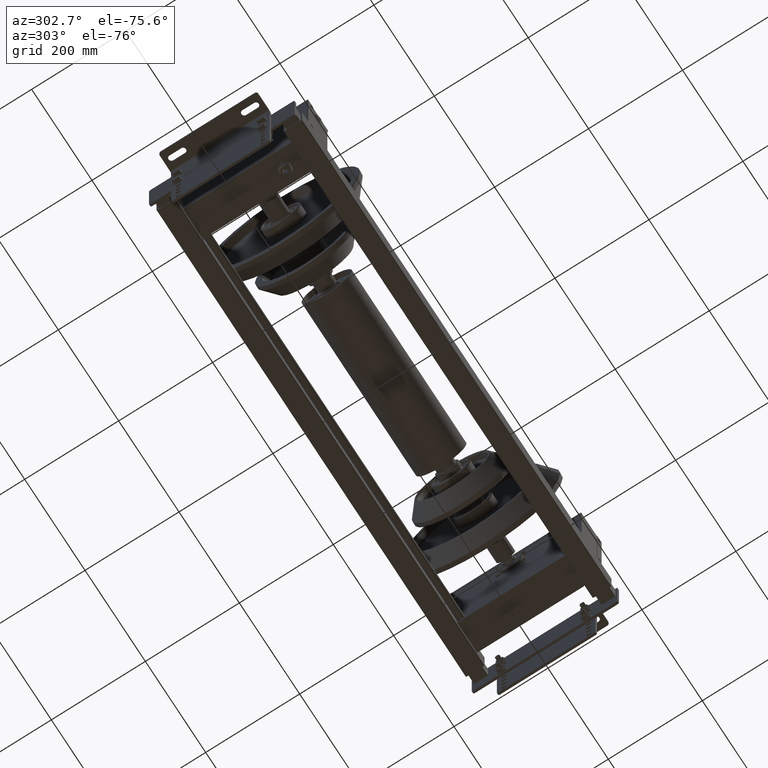
[diagram: clean part render]
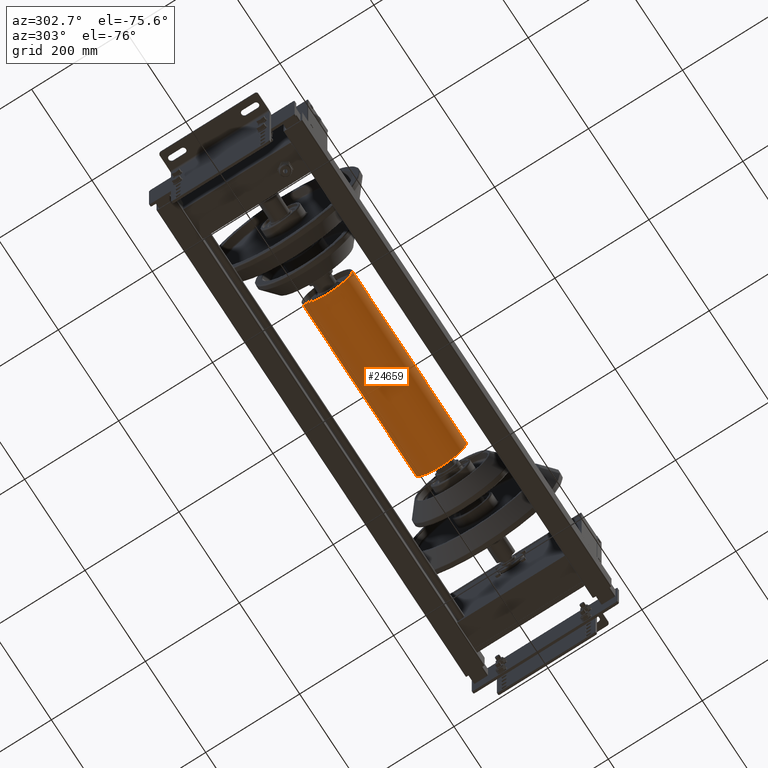
[diagram: same view with one face highlighted and labeled with its STEP entity id]
A machine part, auxiliary view. The second image highlights one B-rep face of the part: STEP entity #24659.
In plain terms, the highlighted cylindrical surface (edge-blend (fillet) strip) has radius 54 mm, axis along (1, 0, -0).
Its self-contained STEP definition (entity closure, byte-faithful):
#24564=CARTESIAN_POINT('',(146.500000000000000,0.0,-53.999999999999972));
#24565=VERTEX_POINT('',#24564);
#24591=CARTESIAN_POINT('',(146.500000000000030,-53.999999999999943,-6.613093E-015));
#24592=VERTEX_POINT('',#24591);
#24600=CARTESIAN_POINT('',(146.500000000000030,0.0,0.0));
#24601=DIRECTION('',(1.0,0.0,0.0));
#24602=DIRECTION('',(0.0,1.0,0.0));
#24603=AXIS2_PLACEMENT_3D('',#24600,#24601,#24602);
#24604=CIRCLE('',#24603,53.999999999999972);
#24605=EDGE_CURVE('',#24592,#24565,#24604,.T.);
#24610=CARTESIAN_POINT('',(-42.499999999999972,0.0,0.0));
#24611=DIRECTION('',(1.0,0.0,0.0));
#24612=DIRECTION('',(0.0,1.0,0.0));
#24613=AXIS2_PLACEMENT_3D('',#24610,#24611,#24612);
#24614=CYLINDRICAL_SURFACE('',#24613,53.999999999999943);
#24615=CARTESIAN_POINT('',(146.500000000000000,53.999999999999972,0.0));
#24616=VERTEX_POINT('',#24615);
#24617=CARTESIAN_POINT('',(-231.499999999999970,53.999999999999915,0.0));
#24618=VERTEX_POINT('',#24617);
#24619=CARTESIAN_POINT('',(146.500000000000000,53.999999999999972,0.0));
#24620=DIRECTION('',(-1.0,0.0,0.0));
#24621=VECTOR('',#24620,378.0);
#24622=LINE('',#24619,#24621);
#24623=EDGE_CURVE('',#24616,#24618,#24622,.T.);
#24624=ORIENTED_EDGE('',*,*,#24623,.F.);
#24625=CARTESIAN_POINT('',(146.500000000000030,0.0,0.0));
#24626=DIRECTION('',(1.0,0.0,0.0));
#24627=DIRECTION('',(0.0,1.0,0.0));
#24628=AXIS2_PLACEMENT_3D('',#24625,#24626,#24627);
#24629=CIRCLE('',#24628,53.999999999999972);
#24630=EDGE_CURVE('',#24565,#24616,#24629,.T.);
#24631=ORIENTED_EDGE('',*,*,#24630,.F.);
#24632=ORIENTED_EDGE('',*,*,#24605,.F.);
#24633=CARTESIAN_POINT('',(-231.499999999999970,-53.999999999999943,-6.613093E-015));
#24634=VERTEX_POINT('',#24633);
#24635=CARTESIAN_POINT('',(146.500000000000030,-53.999999999999943,-6.613093E-015));
#24636=DIRECTION('',(-1.0,0.0,0.0));
#24637=VECTOR('',#24636,378.0);
#24638=LINE('',#24635,#24637);
#24639=EDGE_CURVE('',#24592,#24634,#24638,.T.);
#24640=ORIENTED_EDGE('',*,*,#24639,.T.);
#24641=CARTESIAN_POINT('',(-231.499999999999970,0.0,-53.999999999999915));
#24642=VERTEX_POINT('',#24641);
#24643=CARTESIAN_POINT('',(-231.499999999999970,0.0,0.0));
#24644=DIRECTION('',(1.0,0.0,0.0));
#24645=DIRECTION('',(0.0,1.0,0.0));
#24646=AXIS2_PLACEMENT_3D('',#24643,#24644,#24645);
#24647=CIRCLE('',#24646,53.999999999999915);
#24648=EDGE_CURVE('',#24634,#24642,#24647,.T.);
#24649=ORIENTED_EDGE('',*,*,#24648,.T.);
#24650=CARTESIAN_POINT('',(-231.499999999999970,0.0,0.0));
#24651=DIRECTION('',(1.0,0.0,0.0));
#24652=DIRECTION('',(0.0,1.0,0.0));
#24653=AXIS2_PLACEMENT_3D('',#24650,#24651,#24652);
#24654=CIRCLE('',#24653,53.999999999999915);
#24655=EDGE_CURVE('',#24642,#24618,#24654,.T.);
#24656=ORIENTED_EDGE('',*,*,#24655,.T.);
#24657=EDGE_LOOP('',(#24624,#24631,#24632,#24640,#24649,#24656));
#24658=FACE_OUTER_BOUND('',#24657,.T.);
#24659=ADVANCED_FACE('',(#24658),#24614,.T.);